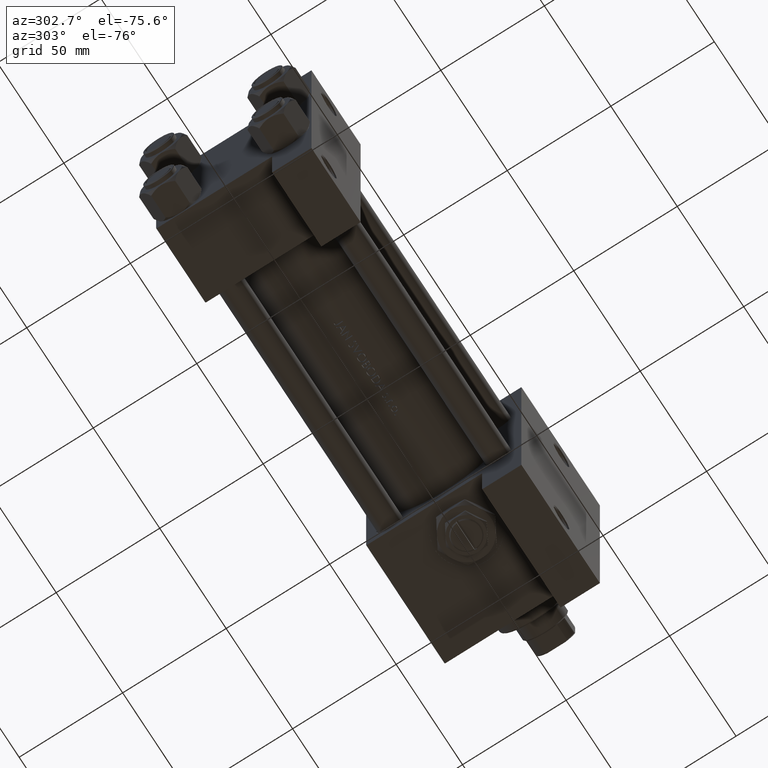
[diagram: clean part render]
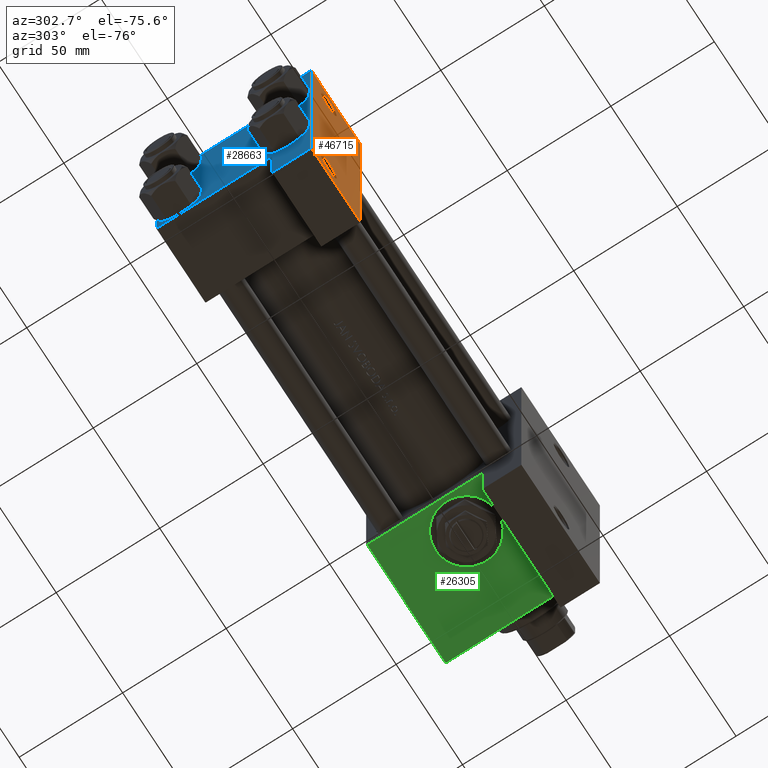
[diagram: same view with three faces highlighted in distinct colors, each labeled with its STEP entity id]
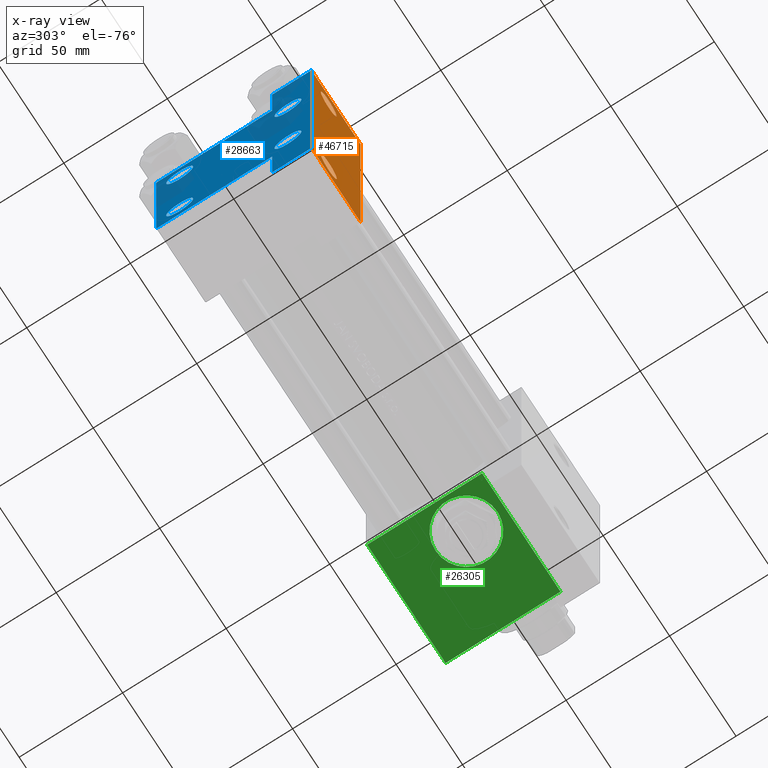
[diagram: x-ray of the same camera — body ghosted, the three highlighted faces saturated]
A machine part, auxiliary view with three faces highlighted in distinct colors.
The next image is the same camera in x-ray (body ghosted, the three faces saturated) — at least one of them is partly hidden behind the body in this view.
Their STEP definitions:

[orange] entity #46715 — the highlighted planar face has unit normal (0, -1, -0).
#182 = CARTESIAN_POINT ( 'NONE',  ( 1.595073532467135441E-14, 63.50000000000000000, -37.50000000000002132 ) ) ;
#235 = CARTESIAN_POINT ( 'NONE',  ( 12.99999999999999822, 50.99999999999997158, -37.50000000000000000 ) ) ;
#659 = EDGE_CURVE ( 'NONE', #26536, #9073, #26856, .T. ) ;
#701 = CARTESIAN_POINT ( 'NONE',  ( 3.977209754999747208E-16, -63.50000000000000000, -37.49999999999999289 ) ) ;
#1519 = CARTESIAN_POINT ( 'NONE',  ( 12.99999999999999822, -51.00000000000000711, -37.50000000000000711 ) ) ;
#1866 = EDGE_LOOP ( 'NONE', ( #5630, #12747, #34890, #41195 ) ) ;
#2720 = AXIS2_PLACEMENT_3D ( 'NONE', #7081, #20516, #19779 ) ;
#2883 = CARTESIAN_POINT ( 'NONE',  ( 0.000000000000000000, 37.49999999999999289, -37.50000000000000000 ) ) ;
#4536 = DIRECTION ( 'NONE',  ( 0.000000000000000000, -1.000000000000000000, -9.251858538542972814E-17 ) ) ;
#5001 = EDGE_CURVE ( 'NONE', #17930, #44495, #23500, .T. ) ;
#5380 = DIRECTION ( 'NONE',  ( 0.000000000000000000, 1.000000000000000000, 0.000000000000000000 ) ) ;
#5556 = AXIS2_PLACEMENT_3D ( 'NONE', #1519, #42853, #46333 ) ;
#5630 = ORIENTED_EDGE ( 'NONE', *, *, #27695, .F. ) ;
#5868 = VERTEX_POINT ( 'NONE', #37371 ) ;
#6550 = CARTESIAN_POINT ( 'NONE',  ( 1.595073532467135441E-14, 63.50000000000000000, -37.50000000000002132 ) ) ;
#7081 = CARTESIAN_POINT ( 'NONE',  ( 37.00000000000000000, 37.49999999999999289, -37.50000000000000000 ) ) ;
#7593 = AXIS2_PLACEMENT_3D ( 'NONE', #235, #25898, #30119 ) ;
#7623 = EDGE_CURVE ( 'NONE', #5868, #26536, #27181, .T. ) ;
#9073 = VERTEX_POINT ( 'NONE', #46232 ) ;
#9731 = VECTOR ( 'NONE', #25306, 1000.000000000000000 ) ;
#9916 = CARTESIAN_POINT ( 'NONE',  ( 7.000500000000006828, 50.99999999999997158, -37.50000000000000000 ) ) ;
#10795 = EDGE_CURVE ( 'NONE', #40787, #16661, #13272, .T. ) ;
#10829 = FACE_OUTER_BOUND ( 'NONE', #1866, .T. ) ;
#12747 = ORIENTED_EDGE ( 'NONE', *, *, #19783, .T. ) ;
#13272 = CIRCLE ( 'NONE', #18821, 5.999499999999990507 ) ;
#14404 = DIRECTION ( 'NONE',  ( 1.000000000000000000, 0.000000000000000000, 0.000000000000000000 ) ) ;
#16097 = DIRECTION ( 'NONE',  ( -0.000000000000000000, -9.251858538542972814E-17, 1.000000000000000000 ) ) ;
#16661 = VERTEX_POINT ( 'NONE', #43747 ) ;
#17930 = VERTEX_POINT ( 'NONE', #9916 ) ;
#18618 = LINE ( 'NONE', #182, #24554 ) ;
#18821 = AXIS2_PLACEMENT_3D ( 'NONE', #47444, #16097, #5380 ) ;
#19538 = FACE_BOUND ( 'NONE', #20254, .T. ) ;
#19779 = DIRECTION ( 'NONE',  ( 0.000000000000000000, 1.000000000000000000, 9.251858538542972814E-17 ) ) ;
#19783 = EDGE_CURVE ( 'NONE', #42343, #5868, #18618, .T. ) ;
#20254 = EDGE_LOOP ( 'NONE', ( #31873, #26039 ) ) ;
#20516 = DIRECTION ( 'NONE',  ( 0.000000000000000000, 9.251858538542972814E-17, -1.000000000000000000 ) ) ;
#20989 = CARTESIAN_POINT ( 'NONE',  ( 7.000500000000006828, -51.00000000000000711, -37.50000000000000711 ) ) ;
#21844 = DIRECTION ( 'NONE',  ( -0.000000000000000000, -9.251858538542972814E-17, 1.000000000000000000 ) ) ;
#22963 = CARTESIAN_POINT ( 'NONE',  ( 37.00000000000000000, 37.49999999999999289, -37.50000000000000000 ) ) ;
#23137 = DIRECTION ( 'NONE',  ( -1.000000000000000000, -0.000000000000000000, -0.000000000000000000 ) ) ;
#23500 = CIRCLE ( 'NONE', #7593, 5.999499999999990507 ) ;
#24329 = CARTESIAN_POINT ( 'NONE',  ( 37.00000000000000000, -63.50000000000000000, -37.49999999999999289 ) ) ;
#24554 = VECTOR ( 'NONE', #14404, 1000.000000000000000 ) ;
#25306 = DIRECTION ( 'NONE',  ( 0.000000000000000000, -1.000000000000000000, -9.251858538542972814E-17 ) ) ;
#25788 = LINE ( 'NONE', #2883, #9731 ) ;
#25858 = VECTOR ( 'NONE', #4536, 1000.000000000000000 ) ;
#25898 = DIRECTION ( 'NONE',  ( -0.000000000000000000, -9.251858538542972814E-17, 1.000000000000000000 ) ) ;
#26012 = PLANE ( 'NONE',  #2720 ) ;
#26039 = ORIENTED_EDGE ( 'NONE', *, *, #30504, .T. ) ;
#26536 = VERTEX_POINT ( 'NONE', #24329 ) ;
#26856 = LINE ( 'NONE', #701, #46598 ) ;
#27181 = LINE ( 'NONE', #22963, #25858 ) ;
#27695 = EDGE_CURVE ( 'NONE', #42343, #9073, #25788, .T. ) ;
#27755 = CIRCLE ( 'NONE', #34117, 5.999499999999990507 ) ;
#30119 = DIRECTION ( 'NONE',  ( 0.000000000000000000, 1.000000000000000000, 0.000000000000000000 ) ) ;
#30464 = EDGE_LOOP ( 'NONE', ( #31512, #45845 ) ) ;
#30504 = EDGE_CURVE ( 'NONE', #44495, #17930, #27755, .T. ) ;
#31512 = ORIENTED_EDGE ( 'NONE', *, *, #10795, .T. ) ;
#31873 = ORIENTED_EDGE ( 'NONE', *, *, #5001, .T. ) ;
#34117 = AXIS2_PLACEMENT_3D ( 'NONE', #44978, #21844, #37036 ) ;
#34890 = ORIENTED_EDGE ( 'NONE', *, *, #7623, .T. ) ;
#35817 = EDGE_CURVE ( 'NONE', #16661, #40787, #44486, .T. ) ;
#37036 = DIRECTION ( 'NONE',  ( 0.000000000000000000, 1.000000000000000000, 0.000000000000000000 ) ) ;
#37371 = CARTESIAN_POINT ( 'NONE',  ( 37.00000000000001421, 63.50000000000000000, -37.50000000000002132 ) ) ;
#40787 = VERTEX_POINT ( 'NONE', #20989 ) ;
#41195 = ORIENTED_EDGE ( 'NONE', *, *, #659, .T. ) ;
#42343 = VERTEX_POINT ( 'NONE', #6550 ) ;
#42853 = DIRECTION ( 'NONE',  ( -0.000000000000000000, -9.251858538542972814E-17, 1.000000000000000000 ) ) ;
#43697 = CARTESIAN_POINT ( 'NONE',  ( 18.99949999999998695, 50.99999999999997158, -37.50000000000000000 ) ) ;
#43747 = CARTESIAN_POINT ( 'NONE',  ( 18.99949999999998695, -51.00000000000000711, -37.50000000000000711 ) ) ;
#44486 = CIRCLE ( 'NONE', #5556, 5.999499999999990507 ) ;
#44495 = VERTEX_POINT ( 'NONE', #43697 ) ;
#44931 = FACE_BOUND ( 'NONE', #30464, .T. ) ;
#44978 = CARTESIAN_POINT ( 'NONE',  ( 12.99999999999999822, 50.99999999999997158, -37.50000000000000000 ) ) ;
#45845 = ORIENTED_EDGE ( 'NONE', *, *, #35817, .T. ) ;
#46232 = CARTESIAN_POINT ( 'NONE',  ( 3.977209754999747208E-16, -63.50000000000000000, -37.49999999999999289 ) ) ;
#46333 = DIRECTION ( 'NONE',  ( 0.000000000000000000, 1.000000000000000000, 0.000000000000000000 ) ) ;
#46598 = VECTOR ( 'NONE', #23137, 1000.000000000000000 ) ;
#46715 = ADVANCED_FACE ( 'NONE', ( #19538, #44931, #10829 ), #26012, .T. ) ;
#47444 = CARTESIAN_POINT ( 'NONE',  ( 12.99999999999999822, -51.00000000000000711, -37.50000000000000711 ) ) ;

[blue] entity #28663 — the highlighted planar face has unit normal (-1, 0, -0).
#314 = CARTESIAN_POINT ( 'NONE',  ( -7.145701223179004046E-16, -37.50000000000000711, -18.50000000000000355 ) ) ;
#620 = FACE_BOUND ( 'NONE', #15523, .T. ) ;
#1232 = EDGE_CURVE ( 'NONE', #25918, #1528, #34696, .T. ) ;
#1368 = CARTESIAN_POINT ( 'NONE',  ( 0.000000000000000000, -26.14999999999999147, -26.15000000000000924 ) ) ;
#1473 = EDGE_CURVE ( 'NONE', #12406, #28341, #5123, .T. ) ;
#1528 = VERTEX_POINT ( 'NONE', #47548 ) ;
#1701 = CIRCLE ( 'NONE', #34281, 6.500000000000023093 ) ;
#1758 = ORIENTED_EDGE ( 'NONE', *, *, #42632, .F. ) ;
#1783 = LINE ( 'NONE', #12743, #40076 ) ;
#2041 = CARTESIAN_POINT ( 'NONE',  ( 0.000000000000000000, -26.14999999999999147, -19.64999999999999503 ) ) ;
#2102 = ORIENTED_EDGE ( 'NONE', *, *, #9758, .T. ) ;
#2883 = CARTESIAN_POINT ( 'NONE',  ( 0.000000000000000000, 37.49999999999999289, -37.50000000000000000 ) ) ;
#3938 = AXIS2_PLACEMENT_3D ( 'NONE', #48537, #44796, #22153 ) ;
#4381 = DIRECTION ( 'NONE',  ( -0.000000000000000000, 0.000000000000000000, 1.000000000000000000 ) ) ;
#4625 = FACE_BOUND ( 'NONE', #17496, .T. ) ;
#5012 = EDGE_CURVE ( 'NONE', #13930, #40308, #22666, .T. ) ;
#5123 = CIRCLE ( 'NONE', #48825, 6.500000000000015987 ) ;
#5523 = AXIS2_PLACEMENT_3D ( 'NONE', #34453, #45890, #11785 ) ;
#5679 = ORIENTED_EDGE ( 'NONE', *, *, #45799, .F. ) ;
#6190 = CARTESIAN_POINT ( 'NONE',  ( 0.000000000000000000, 37.24999999999999289, 37.24999999999999289 ) ) ;
#6256 = DIRECTION ( 'NONE',  ( -2.877097866686192789E-16, -1.000000000000000000, 0.000000000000000000 ) ) ;
#6550 = CARTESIAN_POINT ( 'NONE',  ( 1.595073532467135441E-14, 63.50000000000000000, -37.50000000000002132 ) ) ;
#6588 = VECTOR ( 'NONE', #30513, 1000.000000000000000 ) ;
#6916 = EDGE_CURVE ( 'NONE', #1528, #25918, #14712, .T. ) ;
#7213 = DIRECTION ( 'NONE',  ( 0.000000000000000000, -1.000000000000000000, -9.251858538542971581E-17 ) ) ;
#8548 = EDGE_CURVE ( 'NONE', #11846, #42343, #41643, .T. ) ;
#8831 = CARTESIAN_POINT ( 'NONE',  ( 0.000000000000000000, -37.50000000000000711, 37.49999999999999289 ) ) ;
#9057 = CARTESIAN_POINT ( 'NONE',  ( 0.000000000000000000, -26.14999999999999147, 32.65000000000003411 ) ) ;
#9073 = VERTEX_POINT ( 'NONE', #46232 ) ;
#9278 = EDGE_LOOP ( 'NONE', ( #19996, #48594 ) ) ;
#9731 = VECTOR ( 'NONE', #25306, 1000.000000000000000 ) ;
#9758 = EDGE_CURVE ( 'NONE', #32967, #33166, #25169, .T. ) ;
#9927 = ORIENTED_EDGE ( 'NONE', *, *, #44298, .F. ) ;
#9956 = AXIS2_PLACEMENT_3D ( 'NONE', #38829, #12171, #31346 ) ;
#10195 = ORIENTED_EDGE ( 'NONE', *, *, #25736, .T. ) ;
#10368 = CIRCLE ( 'NONE', #24689, 6.500000000000015987 ) ;
#10980 = VERTEX_POINT ( 'NONE', #33482 ) ;
#11105 = DIRECTION ( 'NONE',  ( 1.000000000000000000, -0.000000000000000000, 0.000000000000000000 ) ) ;
#11785 = DIRECTION ( 'NONE',  ( 0.000000000000000000, 0.000000000000000000, 1.000000000000000000 ) ) ;
#11830 = LINE ( 'NONE', #8831, #6588 ) ;
#11846 = VERTEX_POINT ( 'NONE', #38462 ) ;
#12171 = DIRECTION ( 'NONE',  ( 1.000000000000000000, -0.000000000000000000, 0.000000000000000000 ) ) ;
#12406 = VERTEX_POINT ( 'NONE', #39552 ) ;
#12743 = CARTESIAN_POINT ( 'NONE',  ( 3.977209754999747208E-16, -63.49999999999998579, 26.72167621838007889 ) ) ;
#13540 = VECTOR ( 'NONE', #48553, 1000.000000000000000 ) ;
#13723 = LINE ( 'NONE', #28902, #35682 ) ;
#13724 = VECTOR ( 'NONE', #6256, 1000.000000000000000 ) ;
#13795 = ORIENTED_EDGE ( 'NONE', *, *, #1473, .T. ) ;
#13930 = VERTEX_POINT ( 'NONE', #28157 ) ;
#14712 = CIRCLE ( 'NONE', #9956, 6.500000000000015987 ) ;
#15308 = EDGE_CURVE ( 'NONE', #34879, #40308, #13723, .T. ) ;
#15523 = EDGE_LOOP ( 'NONE', ( #31846, #10195 ) ) ;
#15588 = CARTESIAN_POINT ( 'NONE',  ( 0.000000000000000000, 0.000000000000000000, 0.000000000000000000 ) ) ;
#15974 = CARTESIAN_POINT ( 'NONE',  ( 0.000000000000000000, -37.50000000000000711, 36.99999999999999289 ) ) ;
#16355 = ORIENTED_EDGE ( 'NONE', *, *, #21332, .T. ) ;
#17496 = EDGE_LOOP ( 'NONE', ( #44882, #2102 ) ) ;
#17611 = EDGE_CURVE ( 'NONE', #26124, #41921, #18257, .T. ) ;
#17656 = DIRECTION ( 'NONE',  ( 0.000000000000000000, 0.7071067811865474617, -0.7071067811865474617 ) ) ;
#17958 = LINE ( 'NONE', #32185, #13724 ) ;
#18016 = AXIS2_PLACEMENT_3D ( 'NONE', #30524, #11105, #22571 ) ;
#18257 = CIRCLE ( 'NONE', #3938, 6.500000000000023093 ) ;
#18332 = CIRCLE ( 'NONE', #5523, 6.500000000000023093 ) ;
#18371 = CARTESIAN_POINT ( 'NONE',  ( 0.000000000000000000, 26.14999999999999858, -26.15000000000000213 ) ) ;
#18779 = EDGE_CURVE ( 'NONE', #34494, #20593, #23093, .T. ) ;
#18973 = DIRECTION ( 'NONE',  ( 4.278042683914906889E-17, -1.000000000000000000, 0.000000000000000000 ) ) ;
#19996 = ORIENTED_EDGE ( 'NONE', *, *, #1232, .T. ) ;
#20304 = PLANE ( 'NONE',  #34477 ) ;
#20593 = VERTEX_POINT ( 'NONE', #41959 ) ;
#21137 = CARTESIAN_POINT ( 'NONE',  ( 0.000000000000000000, -26.14999999999999147, 19.64999999999999147 ) ) ;
#21332 = EDGE_CURVE ( 'NONE', #13930, #34494, #44286, .T. ) ;
#21561 = DIRECTION ( 'NONE',  ( 1.000000000000000000, -0.000000000000000000, 0.000000000000000000 ) ) ;
#22153 = DIRECTION ( 'NONE',  ( 0.000000000000000000, 0.000000000000000000, 1.000000000000000000 ) ) ;
#22571 = DIRECTION ( 'NONE',  ( 0.000000000000000000, 0.000000000000000000, 1.000000000000000000 ) ) ;
#22666 = LINE ( 'NONE', #37858, #41803 ) ;
#22734 = DIRECTION ( 'NONE',  ( 0.000000000000000000, -1.734723475976806848E-16, -1.000000000000000000 ) ) ;
#22851 = DIRECTION ( 'NONE',  ( 0.000000000000000000, 0.000000000000000000, 1.000000000000000000 ) ) ;
#22933 = DIRECTION ( 'NONE',  ( 1.000000000000000000, -0.000000000000000000, 0.000000000000000000 ) ) ;
#23093 = LINE ( 'NONE', #30547, #13540 ) ;
#23871 = EDGE_CURVE ( 'NONE', #39825, #10980, #26444, .T. ) ;
#24689 = AXIS2_PLACEMENT_3D ( 'NONE', #18371, #42015, #22851 ) ;
#24793 = CARTESIAN_POINT ( 'NONE',  ( 0.000000000000000000, 26.14999999999999858, 19.64999999999998437 ) ) ;
#25169 = CIRCLE ( 'NONE', #18016, 6.500000000000023093 ) ;
#25267 = CARTESIAN_POINT ( 'NONE',  ( 0.000000000000000000, 37.49999999999999289, 37.00000000000000000 ) ) ;
#25306 = DIRECTION ( 'NONE',  ( 0.000000000000000000, -1.000000000000000000, -9.251858538542972814E-17 ) ) ;
#25714 = ORIENTED_EDGE ( 'NONE', *, *, #23871, .F. ) ;
#25736 = EDGE_CURVE ( 'NONE', #41921, #26124, #1701, .T. ) ;
#25788 = LINE ( 'NONE', #2883, #9731 ) ;
#25918 = VERTEX_POINT ( 'NONE', #2041 ) ;
#26124 = VERTEX_POINT ( 'NONE', #42577 ) ;
#26444 = LINE ( 'NONE', #41638, #32623 ) ;
#27153 = CARTESIAN_POINT ( 'NONE',  ( 0.000000000000000000, 26.14999999999999858, -26.15000000000000213 ) ) ;
#27695 = EDGE_CURVE ( 'NONE', #42343, #9073, #25788, .T. ) ;
#27697 = CARTESIAN_POINT ( 'NONE',  ( 0.000000000000000000, 26.14999999999999858, -19.64999999999998792 ) ) ;
#28011 = ORIENTED_EDGE ( 'NONE', *, *, #8548, .T. ) ;
#28157 = CARTESIAN_POINT ( 'NONE',  ( 0.000000000000000000, 36.99999999999999289, 37.50000000000000000 ) ) ;
#28341 = VERTEX_POINT ( 'NONE', #27697 ) ;
#28418 = DIRECTION ( 'NONE',  ( 0.000000000000000000, -1.734723475976806848E-16, -1.000000000000000000 ) ) ;
#28663 = ADVANCED_FACE ( 'NONE', ( #4625, #46433, #34748, #620, #42226 ), #20304, .T. ) ;
#28902 = CARTESIAN_POINT ( 'NONE',  ( -0.000000000000000000, -37.25000000000000000, 37.25000000000000000 ) ) ;
#30513 = DIRECTION ( 'NONE',  ( 0.000000000000000000, 9.251858538542971581E-17, -1.000000000000000000 ) ) ;
#30524 = CARTESIAN_POINT ( 'NONE',  ( 0.000000000000000000, -26.14999999999999147, 26.15000000000000924 ) ) ;
#30547 = CARTESIAN_POINT ( 'NONE',  ( 0.000000000000000000, 37.49999999999999289, 37.50000000000000000 ) ) ;
#30926 = CARTESIAN_POINT ( 'NONE',  ( 1.595073532467135441E-14, 63.50000000000001421, 26.72167621838005047 ) ) ;
#31262 = DIRECTION ( 'NONE',  ( 0.000000000000000000, 0.000000000000000000, 1.000000000000000000 ) ) ;
#31346 = DIRECTION ( 'NONE',  ( 0.000000000000000000, 0.000000000000000000, 1.000000000000000000 ) ) ;
#31846 = ORIENTED_EDGE ( 'NONE', *, *, #17611, .T. ) ;
#32185 = CARTESIAN_POINT ( 'NONE',  ( 1.595073532467135757E-14, 63.50000000000001421, -18.50000000000000355 ) ) ;
#32613 = CARTESIAN_POINT ( 'NONE',  ( 0.000000000000000000, -37.00000000000000711, 37.49999999999999289 ) ) ;
#32623 = VECTOR ( 'NONE', #18973, 1000.000000000000000 ) ;
#32805 = ORIENTED_EDGE ( 'NONE', *, *, #5012, .F. ) ;
#32967 = VERTEX_POINT ( 'NONE', #21137 ) ;
#33166 = VERTEX_POINT ( 'NONE', #9057 ) ;
#33482 = CARTESIAN_POINT ( 'NONE',  ( 3.977209754999747208E-16, -63.50000000000000000, -18.50000000000000355 ) ) ;
#33806 = EDGE_CURVE ( 'NONE', #28341, #12406, #10368, .T. ) ;
#33871 = VECTOR ( 'NONE', #22734, 1000.000000000000000 ) ;
#34171 = CARTESIAN_POINT ( 'NONE',  ( 0.000000000000000000, 26.14999999999999858, 26.15000000000000213 ) ) ;
#34281 = AXIS2_PLACEMENT_3D ( 'NONE', #34171, #21561, #36262 ) ;
#34425 = EDGE_LOOP ( 'NONE', ( #35562, #13795 ) ) ;
#34453 = CARTESIAN_POINT ( 'NONE',  ( 0.000000000000000000, -26.14999999999999147, 26.15000000000000924 ) ) ;
#34477 = AXIS2_PLACEMENT_3D ( 'NONE', #15588, #42708, #4381 ) ;
#34494 = VERTEX_POINT ( 'NONE', #25267 ) ;
#34627 = EDGE_CURVE ( 'NONE', #33166, #32967, #18332, .T. ) ;
#34696 = CIRCLE ( 'NONE', #48326, 6.500000000000015987 ) ;
#34748 = FACE_BOUND ( 'NONE', #34425, .T. ) ;
#34879 = VERTEX_POINT ( 'NONE', #15974 ) ;
#35562 = ORIENTED_EDGE ( 'NONE', *, *, #33806, .T. ) ;
#35682 = VECTOR ( 'NONE', #35903, 1000.000000000000114 ) ;
#35903 = DIRECTION ( 'NONE',  ( -0.000000000000000000, 0.7071067811865474617, 0.7071067811865474617 ) ) ;
#36262 = DIRECTION ( 'NONE',  ( 0.000000000000000000, 0.000000000000000000, 1.000000000000000000 ) ) ;
#37858 = CARTESIAN_POINT ( 'NONE',  ( 0.000000000000000000, 37.49999999999999289, 37.50000000000000000 ) ) ;
#38121 = DIRECTION ( 'NONE',  ( 0.000000000000000000, 0.000000000000000000, 1.000000000000000000 ) ) ;
#38462 = CARTESIAN_POINT ( 'NONE',  ( 1.595073532467135441E-14, 63.50000000000000000, -18.50000000000000355 ) ) ;
#38829 = CARTESIAN_POINT ( 'NONE',  ( 0.000000000000000000, -26.14999999999999147, -26.15000000000000924 ) ) ;
#39552 = CARTESIAN_POINT ( 'NONE',  ( 0.000000000000000000, 26.14999999999999858, -32.65000000000001990 ) ) ;
#39825 = VERTEX_POINT ( 'NONE', #314 ) ;
#40076 = VECTOR ( 'NONE', #28418, 1000.000000000000000 ) ;
#40308 = VERTEX_POINT ( 'NONE', #32613 ) ;
#41638 = CARTESIAN_POINT ( 'NONE',  ( 3.977209754999744250E-16, -63.49999999999998579, -18.50000000000000355 ) ) ;
#41643 = LINE ( 'NONE', #30926, #33871 ) ;
#41803 = VECTOR ( 'NONE', #7213, 1000.000000000000000 ) ;
#41921 = VERTEX_POINT ( 'NONE', #24793 ) ;
#41959 = CARTESIAN_POINT ( 'NONE',  ( 0.000000000000000000, 37.49999999999999289, -18.49999999999999645 ) ) ;
#42015 = DIRECTION ( 'NONE',  ( 1.000000000000000000, -0.000000000000000000, 0.000000000000000000 ) ) ;
#42226 = FACE_OUTER_BOUND ( 'NONE', #48100, .T. ) ;
#42301 = ORIENTED_EDGE ( 'NONE', *, *, #15308, .T. ) ;
#42343 = VERTEX_POINT ( 'NONE', #6550 ) ;
#42355 = ORIENTED_EDGE ( 'NONE', *, *, #27695, .T. ) ;
#42577 = CARTESIAN_POINT ( 'NONE',  ( 0.000000000000000000, 26.14999999999999858, 32.65000000000002700 ) ) ;
#42632 = EDGE_CURVE ( 'NONE', #11846, #20593, #17958, .T. ) ;
#42708 = DIRECTION ( 'NONE',  ( -1.000000000000000000, 0.000000000000000000, -0.000000000000000000 ) ) ;
#44286 = LINE ( 'NONE', #6190, #49243 ) ;
#44298 = EDGE_CURVE ( 'NONE', #34879, #39825, #11830, .T. ) ;
#44796 = DIRECTION ( 'NONE',  ( 1.000000000000000000, -0.000000000000000000, 0.000000000000000000 ) ) ;
#44882 = ORIENTED_EDGE ( 'NONE', *, *, #34627, .T. ) ;
#45799 = EDGE_CURVE ( 'NONE', #10980, #9073, #1783, .T. ) ;
#45890 = DIRECTION ( 'NONE',  ( 1.000000000000000000, -0.000000000000000000, 0.000000000000000000 ) ) ;
#46053 = ORIENTED_EDGE ( 'NONE', *, *, #18779, .T. ) ;
#46232 = CARTESIAN_POINT ( 'NONE',  ( 3.977209754999747208E-16, -63.50000000000000000, -37.49999999999999289 ) ) ;
#46433 = FACE_BOUND ( 'NONE', #9278, .T. ) ;
#46679 = DIRECTION ( 'NONE',  ( 1.000000000000000000, -0.000000000000000000, 0.000000000000000000 ) ) ;
#47548 = CARTESIAN_POINT ( 'NONE',  ( 0.000000000000000000, -26.14999999999999147, -32.65000000000002700 ) ) ;
#48100 = EDGE_LOOP ( 'NONE', ( #9927, #42301, #32805, #16355, #46053, #1758, #28011, #42355, #5679, #25714 ) ) ;
#48326 = AXIS2_PLACEMENT_3D ( 'NONE', #1368, #46679, #31262 ) ;
#48537 = CARTESIAN_POINT ( 'NONE',  ( 0.000000000000000000, 26.14999999999999858, 26.15000000000000213 ) ) ;
#48553 = DIRECTION ( 'NONE',  ( 0.000000000000000000, 0.000000000000000000, -1.000000000000000000 ) ) ;
#48594 = ORIENTED_EDGE ( 'NONE', *, *, #6916, .T. ) ;
#48825 = AXIS2_PLACEMENT_3D ( 'NONE', #27153, #22933, #38121 ) ;
#49243 = VECTOR ( 'NONE', #17656, 1000.000000000000114 ) ;

[green] entity #26305 — the highlighted planar face has unit normal (0, 0, -1).
#19 = DIRECTION ( 'NONE',  ( 0.000000000000000000, 0.000000000000000000, -1.000000000000000000 ) ) ;
#255 = AXIS2_PLACEMENT_3D ( 'NONE', #32473, #43925, #6307 ) ;
#286 = ORIENTED_EDGE ( 'NONE', *, *, #31995, .T. ) ;
#829 = ORIENTED_EDGE ( 'NONE', *, *, #47611, .F. ) ;
#2343 = EDGE_LOOP ( 'NONE', ( #47497, #286, #46933, #41017 ) ) ;
#3416 = CARTESIAN_POINT ( 'NONE',  ( 175.0000000000000000, 37.50000000000000000, 0.000000000000000000 ) ) ;
#4770 = CIRCLE ( 'NONE', #11112, 15.00000000000002487 ) ;
#5953 = DIRECTION ( 'NONE',  ( 0.000000000000000000, -0.000000000000000000, 1.000000000000000000 ) ) ;
#6307 = DIRECTION ( 'NONE',  ( 0.000000000000000000, 0.000000000000000000, 1.000000000000000000 ) ) ;
#9097 = VERTEX_POINT ( 'NONE', #13060 ) ;
#10864 = ORIENTED_EDGE ( 'NONE', *, *, #36284, .F. ) ;
#11050 = EDGE_CURVE ( 'NONE', #38363, #25557, #19525, .T. ) ;
#11112 = AXIS2_PLACEMENT_3D ( 'NONE', #3416, #22348, #14624 ) ;
#12570 = VERTEX_POINT ( 'NONE', #34938 ) ;
#13060 = CARTESIAN_POINT ( 'NONE',  ( 217.0000000000000000, 37.50000000000000000, 36.99999999999996447 ) ) ;
#14624 = DIRECTION ( 'NONE',  ( 0.000000000000000000, 0.000000000000000000, 1.000000000000000000 ) ) ;
#15030 = VERTEX_POINT ( 'NONE', #33001 ) ;
#15063 = VECTOR ( 'NONE', #19, 1000.000000000000000 ) ;
#15392 = CARTESIAN_POINT ( 'NONE',  ( 217.0000000000000000, 37.50000000000000000, 37.49999999999999289 ) ) ;
#15791 = DIRECTION ( 'NONE',  ( -1.000000000000000000, 5.880418562633242031E-16, -0.000000000000000000 ) ) ;
#17547 = VERTEX_POINT ( 'NONE', #46552 ) ;
#18427 = AXIS2_PLACEMENT_3D ( 'NONE', #28616, #39844, #5953 ) ;
#19128 = DIRECTION ( 'NONE',  ( 0.000000000000000000, 0.000000000000000000, -1.000000000000000000 ) ) ;
#19525 = LINE ( 'NONE', #48913, #29954 ) ;
#20658 = FACE_OUTER_BOUND ( 'NONE', #2343, .T. ) ;
#20667 = VECTOR ( 'NONE', #46148, 1000.000000000000000 ) ;
#22348 = DIRECTION ( 'NONE',  ( 0.000000000000000000, 1.000000000000000000, 0.000000000000000000 ) ) ;
#25557 = VERTEX_POINT ( 'NONE', #39024 ) ;
#26305 = ADVANCED_FACE ( 'NONE', ( #28122, #20658 ), #39345, .T. ) ;
#26492 = LINE ( 'NONE', #34463, #20667 ) ;
#28122 = FACE_BOUND ( 'NONE', #32320, .T. ) ;
#28616 = CARTESIAN_POINT ( 'NONE',  ( 217.0000000000000000, 37.50000000000000000, 37.49999999999999289 ) ) ;
#29954 = VECTOR ( 'NONE', #15791, 1000.000000000000000 ) ;
#31995 = EDGE_CURVE ( 'NONE', #17547, #9097, #26492, .T. ) ;
#32320 = EDGE_LOOP ( 'NONE', ( #829, #10864 ) ) ;
#32473 = CARTESIAN_POINT ( 'NONE',  ( 175.0000000000000000, 37.50000000000000000, 0.000000000000000000 ) ) ;
#33001 = CARTESIAN_POINT ( 'NONE',  ( 175.0000000000000000, 37.50000000000000000, 15.00000000000002487 ) ) ;
#34142 = CARTESIAN_POINT ( 'NONE',  ( 158.0000000000000000, 37.50000000000000000, 37.49999999999999289 ) ) ;
#34463 = CARTESIAN_POINT ( 'NONE',  ( 217.0000000000000000, 37.50000000000000000, 36.99999999999996447 ) ) ;
#34861 = EDGE_CURVE ( 'NONE', #17547, #25557, #37892, .T. ) ;
#34938 = CARTESIAN_POINT ( 'NONE',  ( 175.0000000000000000, 37.50000000000000000, -15.00000000000002487 ) ) ;
#36284 = EDGE_CURVE ( 'NONE', #12570, #15030, #4770, .T. ) ;
#36349 = LINE ( 'NONE', #15392, #43964 ) ;
#37892 = LINE ( 'NONE', #34142, #15063 ) ;
#38363 = VERTEX_POINT ( 'NONE', #44695 ) ;
#39024 = CARTESIAN_POINT ( 'NONE',  ( 158.0000000000000000, 37.50000000000000000, -18.50000000000000355 ) ) ;
#39345 = PLANE ( 'NONE',  #18427 ) ;
#39844 = DIRECTION ( 'NONE',  ( -0.000000000000000000, 1.000000000000000000, 0.000000000000000000 ) ) ;
#41017 = ORIENTED_EDGE ( 'NONE', *, *, #11050, .T. ) ;
#43209 = CIRCLE ( 'NONE', #255, 15.00000000000002487 ) ;
#43925 = DIRECTION ( 'NONE',  ( 0.000000000000000000, 1.000000000000000000, 0.000000000000000000 ) ) ;
#43951 = EDGE_CURVE ( 'NONE', #9097, #38363, #36349, .T. ) ;
#43964 = VECTOR ( 'NONE', #19128, 1000.000000000000000 ) ;
#44695 = CARTESIAN_POINT ( 'NONE',  ( 217.0000000000000284, 37.49999999999996447, -18.50000000000000000 ) ) ;
#46148 = DIRECTION ( 'NONE',  ( 1.000000000000000000, 0.000000000000000000, 0.000000000000000000 ) ) ;
#46552 = CARTESIAN_POINT ( 'NONE',  ( 158.0000000000000000, 37.50000000000000000, 36.99999999999996447 ) ) ;
#46933 = ORIENTED_EDGE ( 'NONE', *, *, #43951, .T. ) ;
#47497 = ORIENTED_EDGE ( 'NONE', *, *, #34861, .F. ) ;
#47611 = EDGE_CURVE ( 'NONE', #15030, #12570, #43209, .T. ) ;
#48913 = CARTESIAN_POINT ( 'NONE',  ( 158.0000000000000000, 37.50000000000000000, -18.50000000000000000 ) ) ;